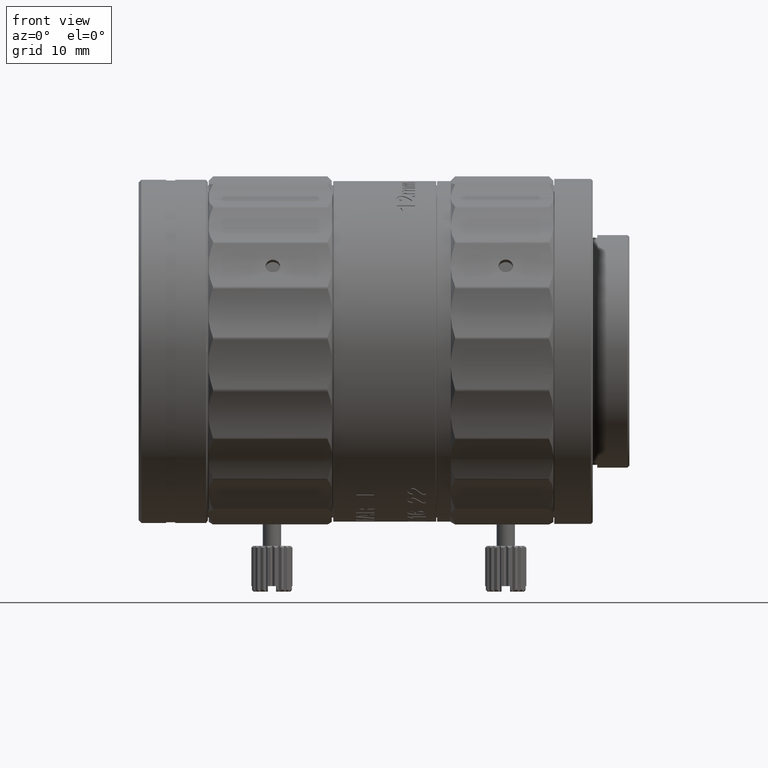
[diagram: clean part render]
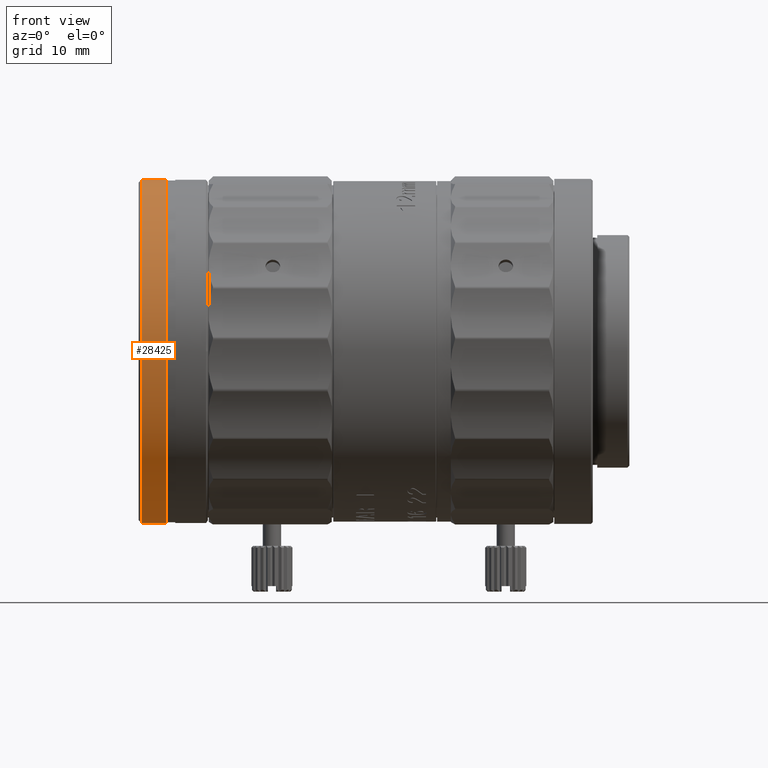
[diagram: same view with one face highlighted and labeled with its STEP entity id]
A machine part, front view. The second image highlights one B-rep face of the part: STEP entity #28425.
In plain terms, the highlighted cylindrical surface (partial cylindrical patch) has radius 18.75 mm, axis along (1, 0, 0).
Its self-contained STEP definition (entity closure, byte-faithful):
#640 = CIRCLE ( 'NONE', #1253, 18.75000000001000089 ) ;
#1253 = AXIS2_PLACEMENT_3D ( 'NONE', #27979, #36370, #21733 ) ;
#2695 = ORIENTED_EDGE ( 'NONE', *, *, #4428, .T. ) ;
#4428 = EDGE_CURVE ( 'NONE', #7351, #23021, #28269, .T. ) ;
#4612 = AXIS2_PLACEMENT_3D ( 'NONE', #32116, #26973, #15200 ) ;
#4713 = VERTEX_POINT ( 'NONE', #34515 ) ;
#4781 = CARTESIAN_POINT ( 'NONE',  ( -31.97431805405999938, 2.296212748402511890E-15, 18.75000000001000089 ) ) ;
#5593 = CARTESIAN_POINT ( 'NONE',  ( -31.90048391367999869, 0.000000000000000000, -18.75000000002367173 ) ) ;
#6152 = ORIENTED_EDGE ( 'NONE', *, *, #13056, .F. ) ;
#7351 = VERTEX_POINT ( 'NONE', #31259 ) ;
#7506 = CARTESIAN_POINT ( 'NONE',  ( -31.97431805405999938, 0.000000000000000000, 0.000000000000000000 ) ) ;
#8068 = CYLINDRICAL_SURFACE ( 'NONE', #20507, 18.75000000001000089 ) ;
#9569 = VECTOR ( 'NONE', #32943, 1000.000000000000000 ) ;
#9982 = VERTEX_POINT ( 'NONE', #29872 ) ;
#11483 = EDGE_CURVE ( 'NONE', #23021, #9982, #32564, .T. ) ;
#13056 = EDGE_CURVE ( 'NONE', #7351, #4713, #27415, .T. ) ;
#13765 = FACE_OUTER_BOUND ( 'NONE', #36200, .T. ) ;
#15200 = DIRECTION ( 'NONE',  ( 0.000000000000000000, 0.000000000000000000, -1.000000000000000000 ) ) ;
#15453 = CARTESIAN_POINT ( 'NONE',  ( -31.97431805405999938, 0.000000000000000000, -18.75000000001000089 ) ) ;
#17289 = EDGE_CURVE ( 'NONE', #4713, #9982, #640, .T. ) ;
#20507 = AXIS2_PLACEMENT_3D ( 'NONE', #7506, #30500, #30685 ) ;
#21733 = DIRECTION ( 'NONE',  ( 0.000000000000000000, 0.000000000000000000, -1.000000000000000000 ) ) ;
#23021 = VERTEX_POINT ( 'NONE', #5593 ) ;
#25890 = VECTOR ( 'NONE', #30266, 1000.000000000000000 ) ;
#26973 = DIRECTION ( 'NONE',  ( 1.000000000000000000, 0.000000000000000000, 0.000000000000000000 ) ) ;
#27415 = LINE ( 'NONE', #4781, #25890 ) ;
#27979 = CARTESIAN_POINT ( 'NONE',  ( -29.20048391366999851, 0.000000000000000000, 0.000000000000000000 ) ) ;
#28269 = CIRCLE ( 'NONE', #4612, 18.75000000001000089 ) ;
#28425 = ADVANCED_FACE ( 'NONE', ( #13765 ), #8068, .T. ) ;
#28543 = ORIENTED_EDGE ( 'NONE', *, *, #17289, .F. ) ;
#29872 = CARTESIAN_POINT ( 'NONE',  ( -29.20048391366999851, 0.000000000000000000, -18.75000000001000089 ) ) ;
#30266 = DIRECTION ( 'NONE',  ( 1.000000000000000000, 0.000000000000000000, 0.000000000000000000 ) ) ;
#30500 = DIRECTION ( 'NONE',  ( 1.000000000000000000, 0.000000000000000000, 0.000000000000000000 ) ) ;
#30685 = DIRECTION ( 'NONE',  ( 0.000000000000000000, 0.000000000000000000, -1.000000000000000000 ) ) ;
#31259 = CARTESIAN_POINT ( 'NONE',  ( -31.90048391367999869, 2.296212748404186247E-15, 18.75000000002367173 ) ) ;
#32116 = CARTESIAN_POINT ( 'NONE',  ( -31.90048391367999869, 0.000000000000000000, 0.000000000000000000 ) ) ;
#32564 = LINE ( 'NONE', #15453, #9569 ) ;
#32595 = ORIENTED_EDGE ( 'NONE', *, *, #11483, .T. ) ;
#32943 = DIRECTION ( 'NONE',  ( 1.000000000000000000, 0.000000000000000000, 0.000000000000000000 ) ) ;
#34515 = CARTESIAN_POINT ( 'NONE',  ( -29.20048391366999851, 2.296212748402511890E-15, 18.75000000001000089 ) ) ;
#36200 = EDGE_LOOP ( 'NONE', ( #6152, #2695, #32595, #28543 ) ) ;
#36370 = DIRECTION ( 'NONE',  ( 1.000000000000000000, 0.000000000000000000, 0.000000000000000000 ) ) ;